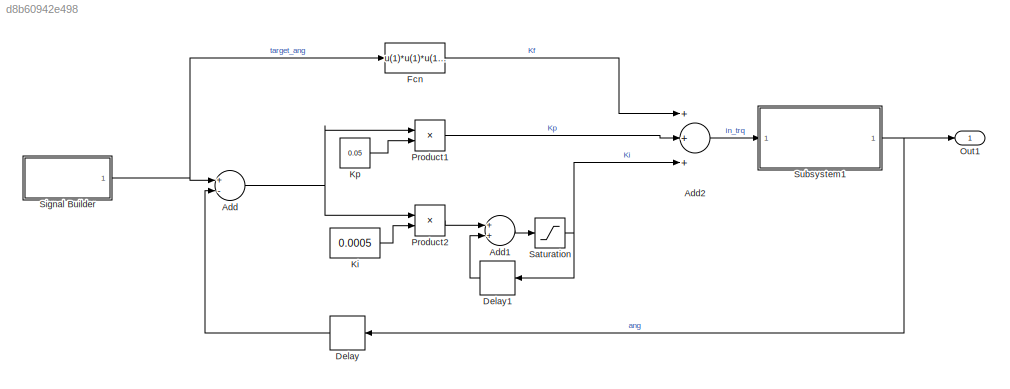
MODEL slx_d8b60942e498
KIND model
CONFIG AbsTol = auto
CONFIG EnableMultiTasking = off
CONFIG FixedStep = 0.01
CONFIG MaxStep = auto
CONFIG MinStep = auto
CONFIG RelTol = 1e-3
CONFIG SampleTimeConstraint = Unconstrained
CONFIG Solver = FixedStepAuto
CONFIG SolverName = FixedStepAuto
CONFIG StartTime = 0.0
CONFIG StopTime = 10.0
BLOCK [Sum] Add
  InputSameDT = off
  Inputs = +-
  OutDataTypeStr = Inherit: Inherit via internal rule
  Ports = [2, 1]
  SaturateOnIntegerOverflow = off
BLOCK [Sum] Add1
  InputSameDT = off
  OutDataTypeStr = Inherit: Inherit via internal rule
  Ports = [2, 1]
  SaturateOnIntegerOverflow = off
BLOCK [Sum] Add2
  InputSameDT = off
  Inputs = +++
  OutDataTypeStr = Inherit: Inherit via internal rule
  Ports = [3, 1]
  SaturateOnIntegerOverflow = off
BLOCK [Delay] Delay
  DelayLength = 1
  InputPortMap = u0
  Ports = [1, 1]
BLOCK [Delay] Delay1
  DelayLength = 1
  InputPortMap = u0
  Ports = [1, 1]
BLOCK [Fcn] Fcn
  Expr = u(1)*u(1)*u(1)*0.000002+u(1)*u(1)*(-0.0005)+u(1)*0.0505
BLOCK [Constant] Ki
  Value = 0.0005
BLOCK [Constant] Kp
  Value = 0.05
BLOCK [Outport] Out1
  IconDisplay = Port number
BLOCK [Product] Product1
  InputSameDT = off
  OutDataTypeStr = Inherit: Inherit via internal rule
  Ports = [2, 1]
  RndMeth = Floor
  SaturateOnIntegerOverflow = off
BLOCK [Product] Product2
  InputSameDT = off
  OutDataTypeStr = Inherit: Inherit via internal rule
  Ports = [2, 1]
  RndMeth = Floor
  SaturateOnIntegerOverflow = off
BLOCK [Saturate] Saturation
  InputPortMap = u0
  Ports = [1, 1]
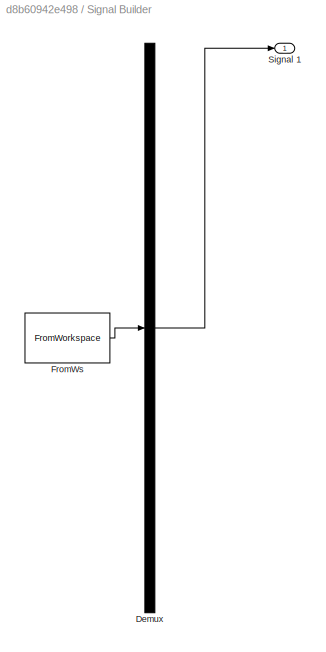
BLOCK [SubSystem] Signal Builder
  ClipboardFcn = sigbuilder_block('clipboard');
  CloseFcn = sigbuilder_block('close');
  ContinueFcn = sigbuilder_block('continue');
  CopyFcn = sigbuilder_block('copy');
  DeleteFcn = sigbuilder_block('delete');
  LoadFcn = sigbuilder_block('load');
  MaskHideContents = on
  ModelCloseFcn = sigbuilder_block('modelClose');
  NameChangeFcn = sigbuilder_block('namechange');
  OpenFcn = sigbuilder_block('open',[209 95.5 550.5 363 ]);
  PauseFcn = sigbuilder_block('pause');
  Ports = [0, 1]
  PreSaveFcn = sigbuilder_block('preSave');
  RequestExecContextInheritance = off
  StartFcn = sigbuilder_block('start');
  StopFcn = sigbuilder_block('stop');
  Tag = STV Subsys
BLOCK [Demux] Signal Builder/Demux
  Outputs = 1
  Ports = [1, 1]
  Tag = STV Demux
BLOCK [FromWorkspace] Signal Builder/FromWs
  SampleTime = 0
  Tag = STV FromWs
  VariableName = tuvar
  ZeroCross = on
BLOCK [Outport] Signal Builder/Signal 1
  IconDisplay = Port number
  Tag = STV Outport
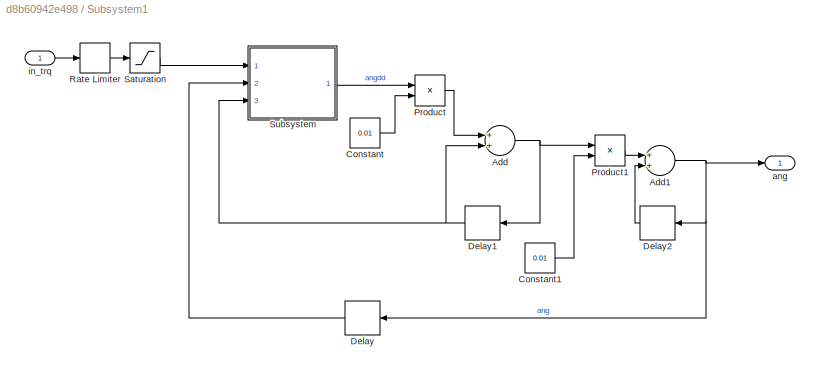
BLOCK [SubSystem] Subsystem1
  Ports = [1, 1]
  RequestExecContextInheritance = off
BLOCK [Sum] Subsystem1/Add
  InputSameDT = off
  OutDataTypeStr = Inherit: Inherit via internal rule
  Ports = [2, 1]
  SaturateOnIntegerOverflow = off
BLOCK [Sum] Subsystem1/Add1
  InputSameDT = off
  OutDataTypeStr = Inherit: Inherit via internal rule
  Ports = [2, 1]
  SaturateOnIntegerOverflow = off
BLOCK [Constant] Subsystem1/Constant
  Value = 0.01
BLOCK [Constant] Subsystem1/Constant1
  Value = 0.01
BLOCK [Delay] Subsystem1/Delay
  DelayLength = 1
  InputPortMap = u0
  Ports = [1, 1]
BLOCK [Delay] Subsystem1/Delay1
  DelayLength = 1
  InputPortMap = u0
  Ports = [1, 1]
BLOCK [Delay] Subsystem1/Delay2
  DelayLength = 1
  InputPortMap = u0
  Ports = [1, 1]
BLOCK [Product] Subsystem1/Product
  InputSameDT = off
  OutDataTypeStr = Inherit: Inherit via internal rule
  Ports = [2, 1]
  RndMeth = Floor
  SaturateOnIntegerOverflow = off
BLOCK [Product] Subsystem1/Product1
  InputSameDT = off
  OutDataTypeStr = Inherit: Inherit via internal rule
  Ports = [2, 1]
  RndMeth = Floor
  SaturateOnIntegerOverflow = off
BLOCK [RateLimiter] Subsystem1/Rate Limiter
  FallingSlewLimit = -10
  RisingSlewLimit = 10
  SampleTimeMode = inherited
BLOCK [Saturate] Subsystem1/Saturation
  InputPortMap = u0
  LowerLimit = -2
  Ports = [1, 1]
  UpperLimit = 2
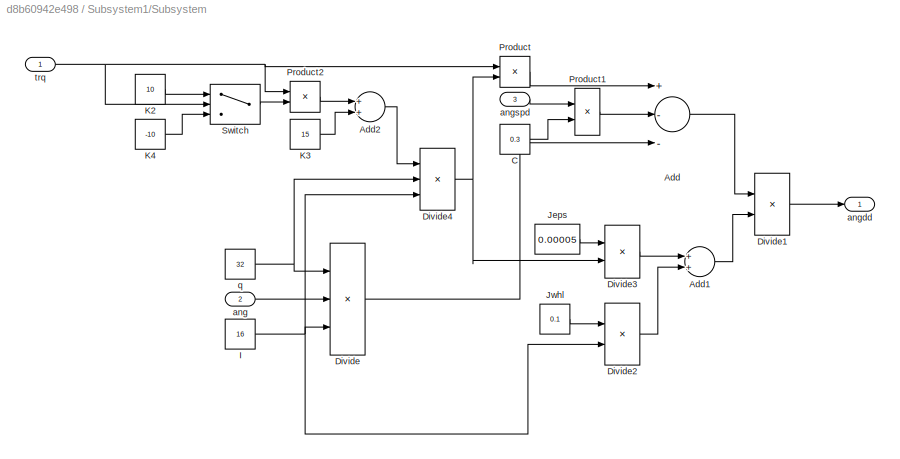
BLOCK [SubSystem] Subsystem1/Subsystem
  Ports = [3, 1]
  RequestExecContextInheritance = off
BLOCK [Sum] Subsystem1/Subsystem/Add
  InputSameDT = off
  Inputs = +--
  OutDataTypeStr = Inherit: Inherit via internal rule
  Ports = [3, 1]
  SaturateOnIntegerOverflow = off
BLOCK [Sum] Subsystem1/Subsystem/Add1
  InputSameDT = off
  OutDataTypeStr = Inherit: Inherit via internal rule
  Ports = [2, 1]
  SaturateOnIntegerOverflow = off
BLOCK [Sum] Subsystem1/Subsystem/Add2
  InputSameDT = off
  OutDataTypeStr = Inherit: Inherit via internal rule
  Ports = [2, 1]
  SaturateOnIntegerOverflow = off
BLOCK [Constant] Subsystem1/Subsystem/C
  Value = 0.3
BLOCK [Product] Subsystem1/Subsystem/Divide
  InputSameDT = off
  Inputs = **/
  OutDataTypeStr = Inherit: Inherit via internal rule
  Ports = [3, 1]
  RndMeth = Floor
  SaturateOnIntegerOverflow = off
BLOCK [Product] Subsystem1/Subsystem/Divide1
  InputSameDT = off
  Inputs = */
  OutDataTypeStr = Inherit: Inherit via internal rule
  Ports = [2, 1]
  RndMeth = Floor
  SaturateOnIntegerOverflow = off
BLOCK [Product] Subsystem1/Subsystem/Divide2
  InputSameDT = off
  Inputs = */
  OutDataTypeStr = Inherit: Inherit via internal rule
  Ports = [2, 1]
  RndMeth = Floor
  SaturateOnIntegerOverflow = off
BLOCK [Product] Subsystem1/Subsystem/Divide3
  InputSameDT = off
  Inputs = **
  OutDataTypeStr = Inherit: Inherit via internal rule
  Ports = [2, 1]
  RndMeth = Floor
  SaturateOnIntegerOverflow = off
BLOCK [Product] Subsystem1/Subsystem/Divide4
  InputSameDT = off
  Inputs = **/
  OutDataTypeStr = Inherit: Inherit via internal rule
  Ports = [3, 1]
  RndMeth = Floor
  SaturateOnIntegerOverflow = off
BLOCK [Constant] Subsystem1/Subsystem/I
  Value = 16
BLOCK [Constant] Subsystem1/Subsystem/Jeps
  Value = 0.00005
BLOCK [Constant] Subsystem1/Subsystem/Jwhl
  Value = 0.1
BLOCK [Constant] Subsystem1/Subsystem/K2
  Value = 10
BLOCK [Constant] Subsystem1/Subsystem/K3
  Value = 15
BLOCK [Constant] Subsystem1/Subsystem/K4
  Value = -10
BLOCK [Product] Subsystem1/Subsystem/Product
  InputSameDT = off
  OutDataTypeStr = Inherit: Inherit via internal rule
  Ports = [2, 1]
  RndMeth = Floor
  SaturateOnIntegerOverflow = off
BLOCK [Product] Subsystem1/Subsystem/Product1
  InputSameDT = off
  OutDataTypeStr = Inherit: Inherit via internal rule
  Ports = [2, 1]
  RndMeth = Floor
  SaturateOnIntegerOverflow = off
BLOCK [Product] Subsystem1/Subsystem/Product2
  InputSameDT = off
  OutDataTypeStr = Inherit: Inherit via internal rule
  Ports = [2, 1]
  RndMeth = Floor
  SaturateOnIntegerOverflow = off
BLOCK [Switch] Subsystem1/Subsystem/Switch
  Criteria = u2 > Threshold
  InputSameDT = off
  SaturateOnIntegerOverflow = off
BLOCK [Inport] Subsystem1/Subsystem/ang
  IconDisplay = Port number
  Port = 2
BLOCK [Outport] Subsystem1/Subsystem/angdd
  IconDisplay = Port number
BLOCK [Inport] Subsystem1/Subsystem/angspd
  IconDisplay = Port number
  Port = 3
BLOCK [Constant] Subsystem1/Subsystem/q
  Value = 32
BLOCK [Inport] Subsystem1/Subsystem/trq
  IconDisplay = Port number
BLOCK [Outport] Subsystem1/ang
  IconDisplay = Port number
BLOCK [Inport] Subsystem1/in_trq
  IconDisplay = Port number
LINE Add1:1 -> Saturation:1
LINE Add2:1 -> Subsystem1:1
NET Add:1 -> Product1:1, Product2:1
LINE Delay1:1 -> Add1:2
LINE Delay:1 -> Add:2
LINE Fcn:1 -> Add2:1
LINE Ki:1 -> Product2:2
LINE Kp:1 -> Product1:2
LINE Product1:1 -> Add2:2
LINE Product2:1 -> Add1:1
NET Saturation:1 -> Add2:3, Delay1:1
NET Signal Builder:1 -> Add:1, Fcn:1
NET Subsystem1/Add1:1 -> Subsystem1/Delay2:1, Subsystem1/Delay:1, Subsystem1/ang:1
NET Subsystem1/Add:1 -> Subsystem1/Delay1:1, Subsystem1/Product1:1
LINE Subsystem1/Constant1:1 -> Subsystem1/Product1:2
LINE Subsystem1/Constant:1 -> Subsystem1/Product:2
NET Subsystem1/Delay1:1 -> Subsystem1/Add:2, Subsystem1/Subsystem:3
LINE Subsystem1/Delay2:1 -> Subsystem1/Add1:2
LINE Subsystem1/Delay:1 -> Subsystem1/Subsystem:2
LINE Subsystem1/Product1:1 -> Subsystem1/Add1:1
LINE Subsystem1/Product:1 -> Subsystem1/Add:1
LINE Subsystem1/Rate Limiter:1 -> Subsystem1/Saturation:1
LINE Subsystem1/Saturation:1 -> Subsystem1/Subsystem:1
LINE Subsystem1/Subsystem/Add1:1 -> Subsystem1/Subsystem/Divide1:2
LINE Subsystem1/Subsystem/Add2:1 -> Subsystem1/Subsystem/Divide4:1
LINE Subsystem1/Subsystem/Add:1 -> Subsystem1/Subsystem/Divide1:1
LINE Subsystem1/Subsystem/C:1 -> Subsystem1/Subsystem/Product1:2
LINE Subsystem1/Subsystem/Divide1:1 -> Subsystem1/Subsystem/angdd:1
LINE Subsystem1/Subsystem/Divide2:1 -> Subsystem1/Subsystem/Add1:2
LINE Subsystem1/Subsystem/Divide3:1 -> Subsystem1/Subsystem/Add1:1
NET Subsystem1/Subsystem/Divide4:1 -> Subsystem1/Subsystem/Divide3:2, Subsystem1/Subsystem/Product:2
LINE Subsystem1/Subsystem/Divide:1 -> Subsystem1/Subsystem/Add:3
NET Subsystem1/Subsystem/I:1 -> Subsystem1/Subsystem/Divide2:2, Subsystem1/Subsystem/Divide4:3, Subsystem1/Subsystem/Divide:3
LINE Subsystem1/Subsystem/Jeps:1 -> Subsystem1/Subsystem/Divide3:1
LINE Subsystem1/Subsystem/Jwhl:1 -> Subsystem1/Subsystem/Divide2:1
LINE Subsystem1/Subsystem/K2:1 -> Subsystem1/Subsystem/Switch:1
LINE Subsystem1/Subsystem/K3:1 -> Subsystem1/Subsystem/Add2:2
LINE Subsystem1/Subsystem/K4:1 -> Subsystem1/Subsystem/Switch:3
LINE Subsystem1/Subsystem/Product1:1 -> Subsystem1/Subsystem/Add:2
LINE Subsystem1/Subsystem/Product2:1 -> Subsystem1/Subsystem/Add2:1
LINE Subsystem1/Subsystem/Product:1 -> Subsystem1/Subsystem/Add:1
LINE Subsystem1/Subsystem/Switch:1 -> Subsystem1/Subsystem/Product2:2
LINE Subsystem1/Subsystem/ang:1 -> Subsystem1/Subsystem/Divide:2
LINE Subsystem1/Subsystem/angspd:1 -> Subsystem1/Subsystem/Product1:1
NET Subsystem1/Subsystem/q:1 -> Subsystem1/Subsystem/Divide4:2, Subsystem1/Subsystem/Divide:1
NET Subsystem1/Subsystem/trq:1 -> Subsystem1/Subsystem/Product2:1, Subsystem1/Subsystem/Product:1, Subsystem1/Subsystem/Switch:2
LINE Subsystem1/Subsystem:1 -> Subsystem1/Product:1
LINE Subsystem1/in_trq:1 -> Subsystem1/Rate Limiter:1
NET Subsystem1:1 -> Delay:1, Out1:1
note: NET lines group one-source signal fan-out (src -> all destinations, sorted); 1:1 wires keep LINE
